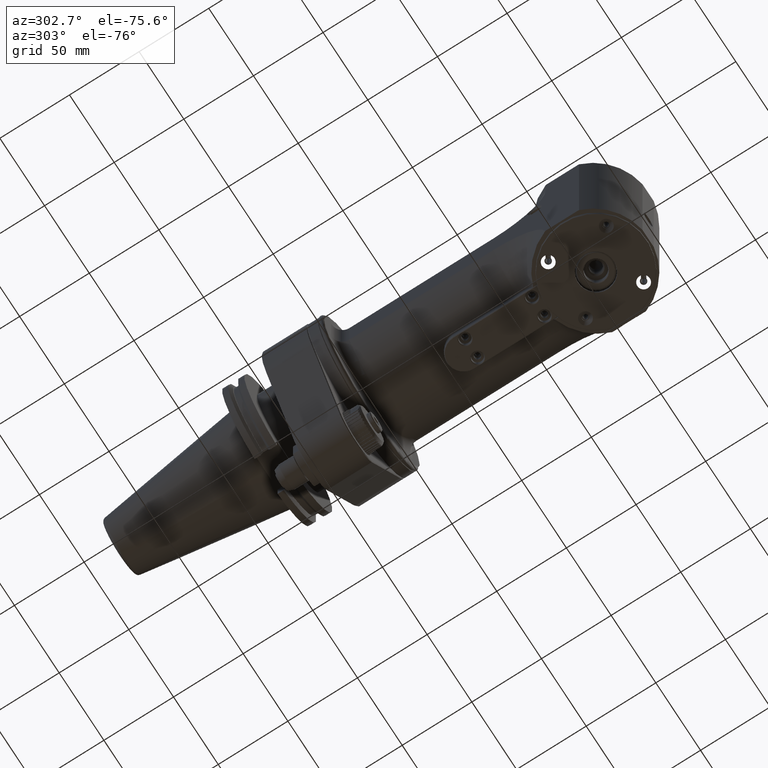
[diagram: clean part render]
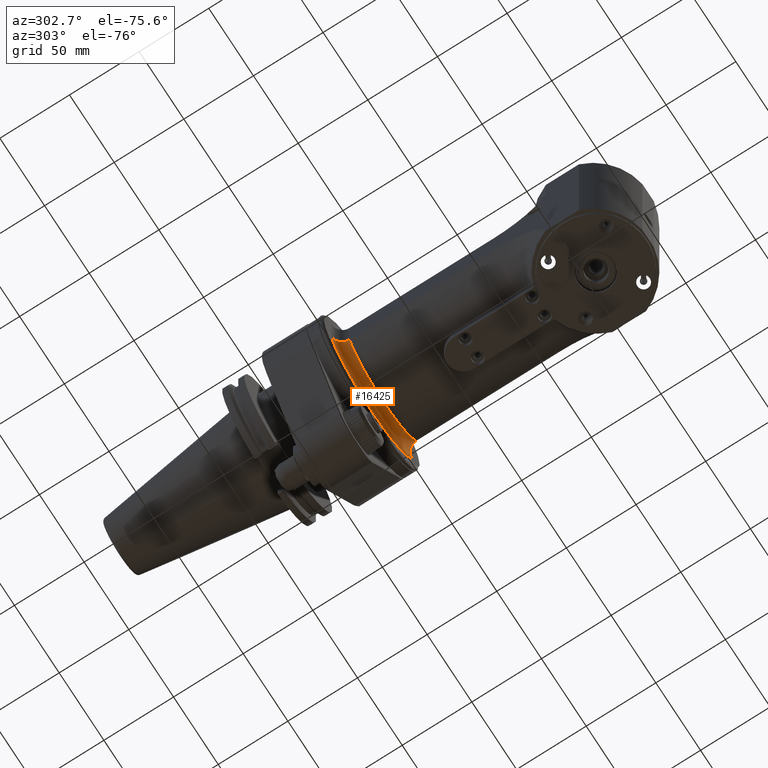
[diagram: same view with one face highlighted and labeled with its STEP entity id]
A machine part, auxiliary view. The second image highlights one B-rep face of the part: STEP entity #16425.
In plain terms, the highlighted toroidal blend (fillet) surface has major radius 48 mm and minor (blend) radius 8 mm.
Its self-contained STEP definition (entity closure, byte-faithful):
#129=TOROIDAL_SURFACE('',#18027,48.,8.);
#376=B_SPLINE_CURVE_WITH_KNOTS('',3,(#27851,#27852,#27853,#27854,#27855,
#27856,#27857,#27858,#27859,#27860,#27861,#27862,#27863,#27864),
 .UNSPECIFIED.,.F.,.F.,(4,2,2,2,2,2,4),(-0.00140371437997385,1.18282120209479E-14,
0.169087930335813,0.338063352426341,0.653726919033874,0.964360077195332,
1.26781659907793),.UNSPECIFIED.);
#385=B_SPLINE_CURVE_WITH_KNOTS('',3,(#28340,#28341,#28342,#28343,#28344,
#28345,#28346,#28347,#28348,#28349,#28350,#28351,#28352,#28353),
 .UNSPECIFIED.,.F.,.F.,(4,2,2,2,2,2,4),(1.26781653328291,1.27240303134666,
1.58212816776181,1.89661720332415,2.21567516986073,2.53634682188062,2.5377504366891),
 .UNSPECIFIED.);
#1178=CIRCLE('',#17651,40.);
#1326=CIRCLE('',#17929,48.);
#2339=FACE_OUTER_BOUND('',#3346,.T.);
#3346=EDGE_LOOP('',(#13623,#13624,#13625,#13626));
#7132=VERTEX_POINT('',#26753);
#7133=VERTEX_POINT('',#26755);
#7364=VERTEX_POINT('',#27850);
#7366=VERTEX_POINT('',#27869);
#9151=EDGE_CURVE('',#7132,#7133,#1178,.T.);
#9485=EDGE_CURVE('',#7364,#7133,#376,.T.);
#9488=EDGE_CURVE('',#7364,#7366,#1326,.T.);
#9592=EDGE_CURVE('',#7132,#7366,#385,.T.);
#13623=ORIENTED_EDGE('',*,*,#9485,.T.);
#13624=ORIENTED_EDGE('',*,*,#9151,.F.);
#13625=ORIENTED_EDGE('',*,*,#9592,.T.);
#13626=ORIENTED_EDGE('',*,*,#9488,.F.);
#16425=ADVANCED_FACE('',(#2339),#129,.F.);
#17651=AXIS2_PLACEMENT_3D('',#26756,#20861,#20862);
#17929=AXIS2_PLACEMENT_3D('',#27870,#21566,#21567);
#18027=AXIS2_PLACEMENT_3D('',#28339,#21800,#21801);
#20861=DIRECTION('center_axis',(0.,-1.,0.));
#20862=DIRECTION('ref_axis',(-0.937499999999992,0.,-0.347985272676897));
#21566=DIRECTION('center_axis',(0.,1.,0.));
#21567=DIRECTION('ref_axis',(0.947916666666669,0.,-0.31851843440459));
#21800=DIRECTION('center_axis',(0.,-1.,0.));
#21801=DIRECTION('ref_axis',(0.999938743851058,0.,-0.0110683578533195));
#26753=CARTESIAN_POINT('',(-37.5,153.,-13.91941090708));
#26755=CARTESIAN_POINT('',(37.5,153.,-13.91941090708));
#26756=CARTESIAN_POINT('Origin',(0.,153.,0.));
#27850=CARTESIAN_POINT('',(45.5,161.,-15.28888485142));
#27851=CARTESIAN_POINT('Ctrl Pts',(45.4999999999999,161.,-15.2888848514207));
#27852=CARTESIAN_POINT('Ctrl Pts',(45.495382279068,161.,-15.2881297733073));
#27853=CARTESIAN_POINT('Ctrl Pts',(45.4907645690752,160.999996001874,-15.287374641116));
#27854=CARTESIAN_POINT('Ctrl Pts',(44.9299106951484,160.999024802905,-15.1956516331852));
#27855=CARTESIAN_POINT('Ctrl Pts',(44.3752604631853,160.940051954352,-15.1041222743258));
#27856=CARTESIAN_POINT('Ctrl Pts',(43.2875083007764,160.708043387078,-14.922993598674));
#27857=CARTESIAN_POINT('Ctrl Pts',(42.7570463283442,160.53564926881,-14.833835098226));
#27858=CARTESIAN_POINT('Ctrl Pts',(41.2984601911392,159.886815162223,-14.5865773060324));
#27859=CARTESIAN_POINT('Ctrl Pts',(40.4377403211861,159.282060402864,-14.4379564840245));
#27860=CARTESIAN_POINT('Ctrl Pts',(39.0061518626885,157.783952842844,-14.1878871880206));
#27861=CARTESIAN_POINT('Ctrl Pts',(38.4441568638381,156.909182102212,-14.0881295130872));
#27862=CARTESIAN_POINT('Ctrl Pts',(37.6915015453187,155.011283960006,-13.9539208140835));
#27863=CARTESIAN_POINT('Ctrl Pts',(37.5,154.010705714165,-13.9194109070751));
#27864=CARTESIAN_POINT('Ctrl Pts',(37.5,153.,-13.9194109070751));
#27869=CARTESIAN_POINT('',(-45.5,161.,-15.28888485142));
#27870=CARTESIAN_POINT('Origin',(0.,161.,0.));
#28339=CARTESIAN_POINT('Origin',(0.,153.,0.));
#28340=CARTESIAN_POINT('Ctrl Pts',(-37.5,153.,-13.9194109070751));
#28341=CARTESIAN_POINT('Ctrl Pts',(-37.5,153.015275994152,-13.9194109070751));
#28342=CARTESIAN_POINT('Ctrl Pts',(-37.5000437542224,153.030554301809,-13.9194187656111));
#28343=CARTESIAN_POINT('Ctrl Pts',(-37.5060434194341,154.077719235378,-13.9204963354679));
#28344=CARTESIAN_POINT('Ctrl Pts',(-37.7115006074082,155.097470008326,-13.9575210996867));
#28345=CARTESIAN_POINT('Ctrl Pts',(-38.5024504487278,157.015876654995,-14.0984855962252));
#28346=CARTESIAN_POINT('Ctrl Pts',(-39.0854334311311,157.892389231487,-14.2018832311967));
#28347=CARTESIAN_POINT('Ctrl Pts',(-40.5605660241362,159.380893343243,-14.4592402259884));
#28348=CARTESIAN_POINT('Ctrl Pts',(-41.4427232375369,159.974430420114,-14.6113147200433));
#28349=CARTESIAN_POINT('Ctrl Pts',(-43.386353479249,160.78767424275,-14.9401787761577));
#28350=CARTESIAN_POINT('Ctrl Pts',(-44.4311819973154,160.998161182593,-15.1140886834897));
#28351=CARTESIAN_POINT('Ctrl Pts',(-45.490764569075,160.999996001874,-15.287374641116));
#28352=CARTESIAN_POINT('Ctrl Pts',(-45.4953822790683,161.,-15.2881297733073));
#28353=CARTESIAN_POINT('Ctrl Pts',(-45.5,161.,-15.2888848514207));